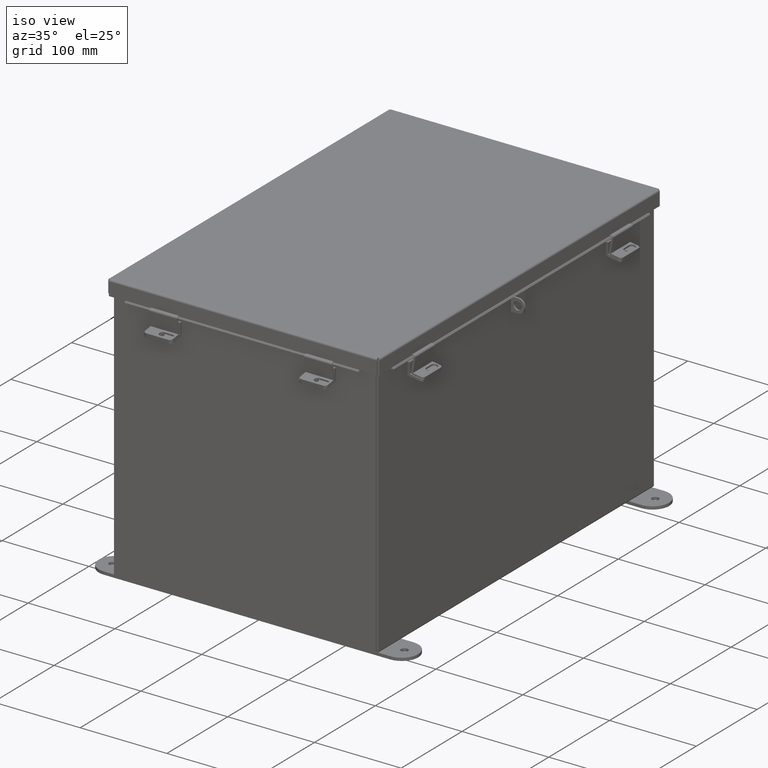
[diagram: clean part render]
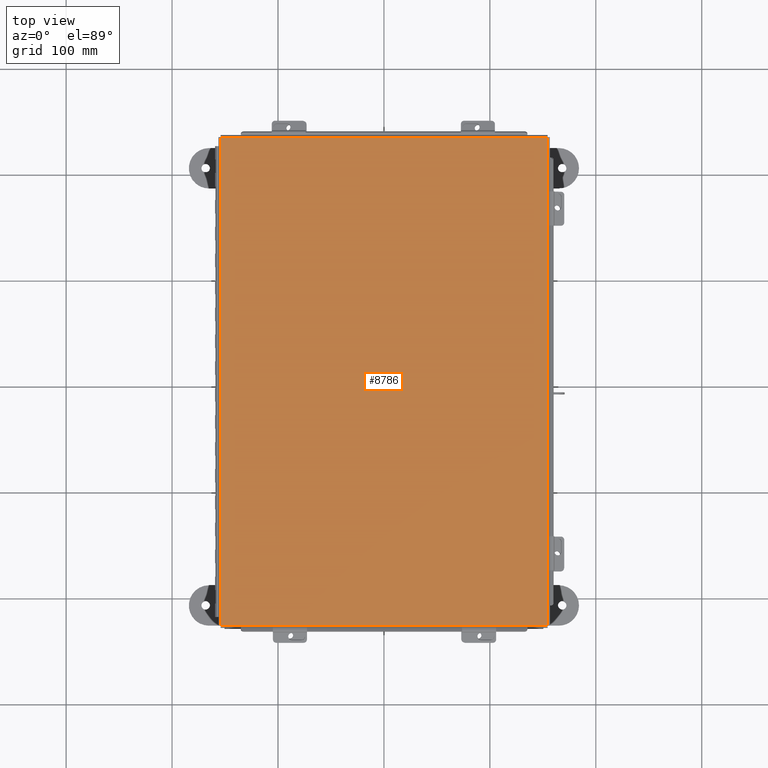
[diagram: tour spotlight — one face highlighted and labeled with its STEP entity id]
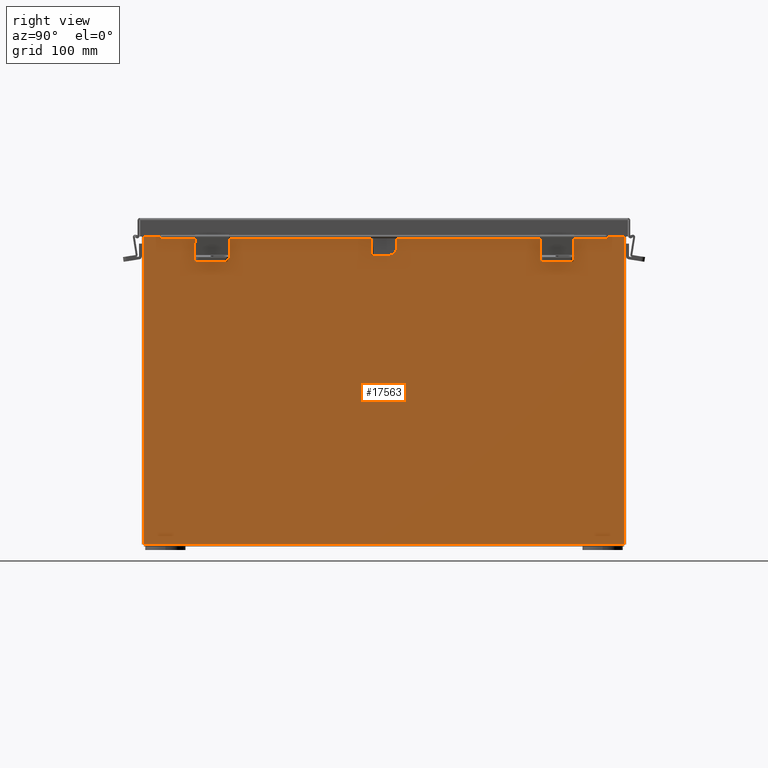
[diagram: tour spotlight — one face highlighted and labeled with its STEP entity id]
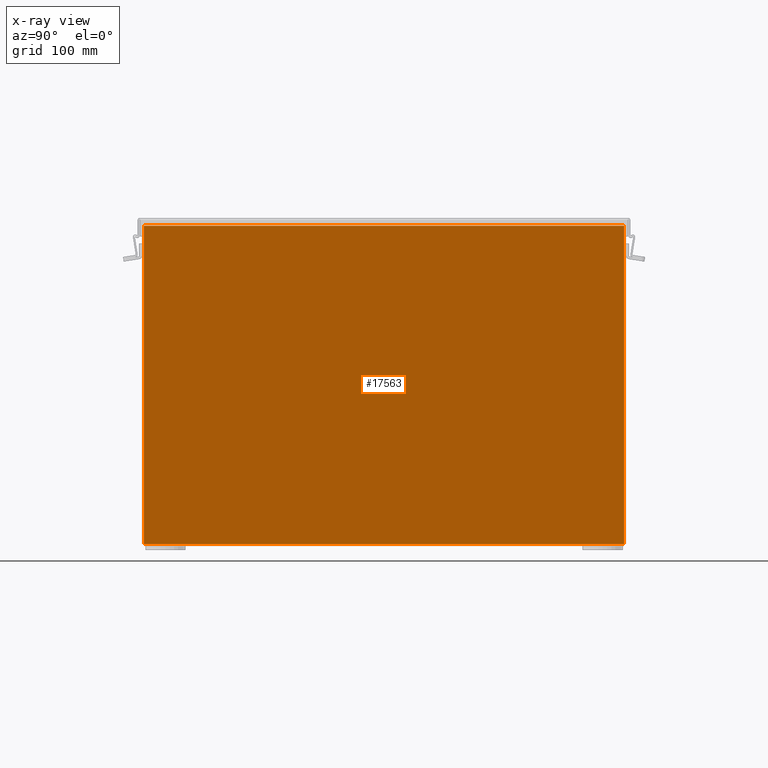
[diagram: x-ray of the same camera — body ghosted, this tour face saturated]
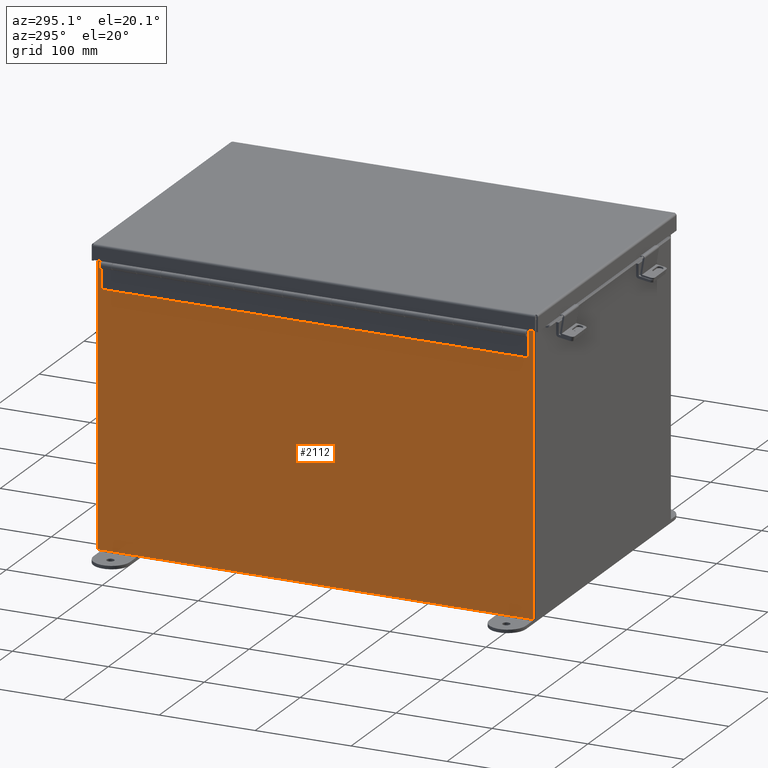
[diagram: tour spotlight — one face highlighted and labeled with its STEP entity id]
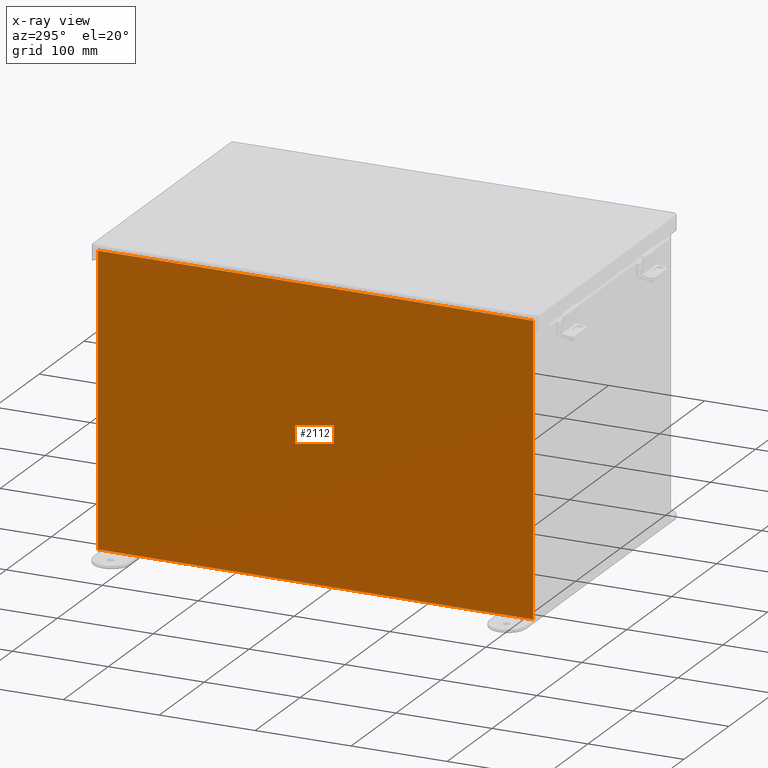
[diagram: x-ray of the same camera — body ghosted, this tour face saturated]
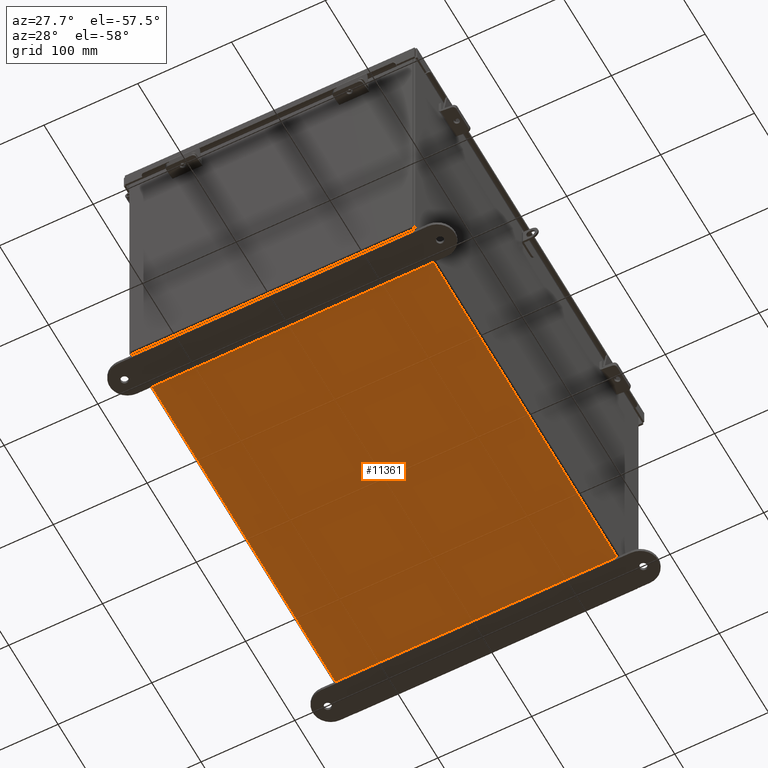
[diagram: tour spotlight — one face highlighted and labeled with its STEP entity id]
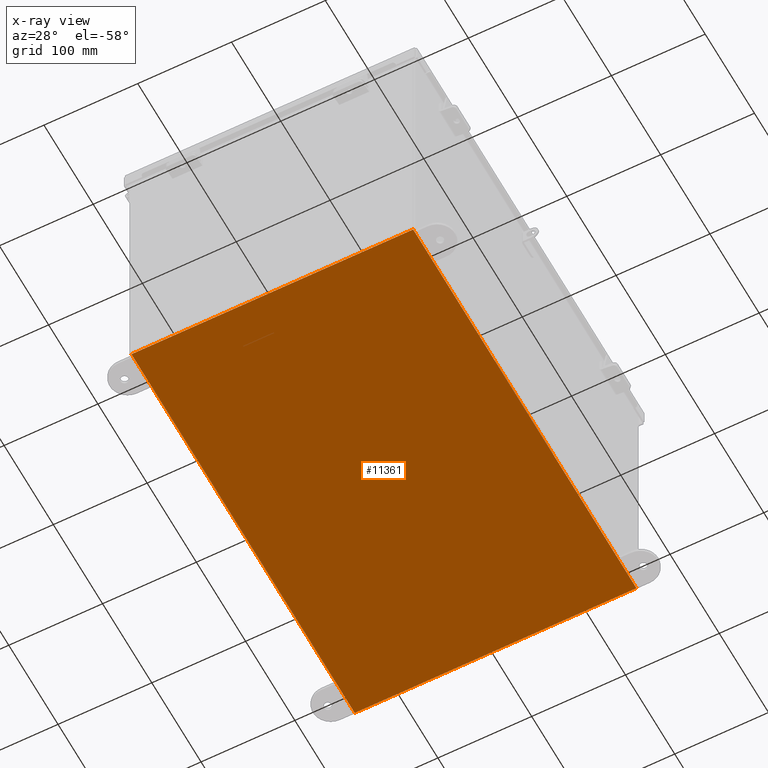
[diagram: x-ray of the same camera — body ghosted, this tour face saturated]
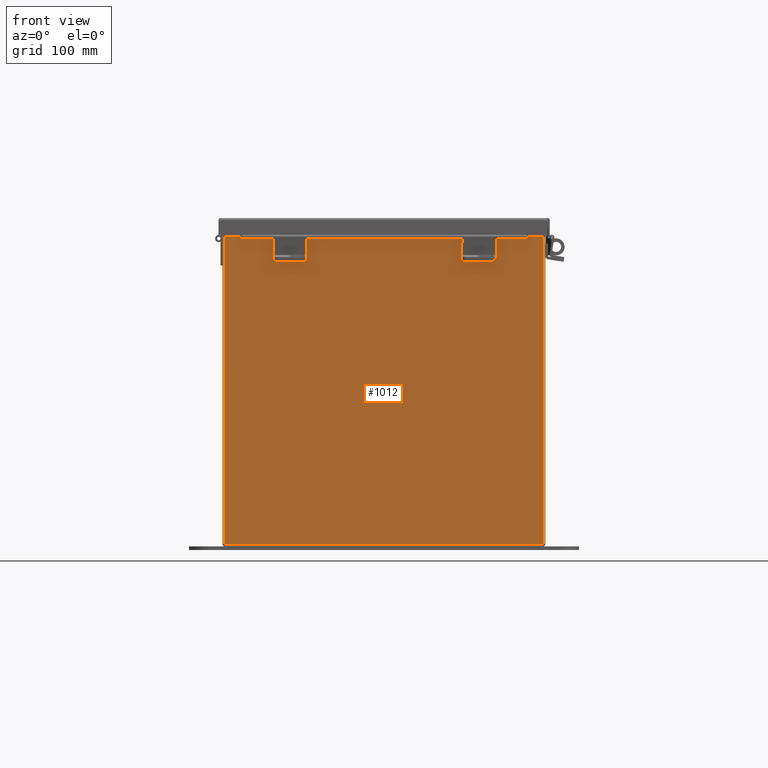
[diagram: tour spotlight — one face highlighted and labeled with its STEP entity id]
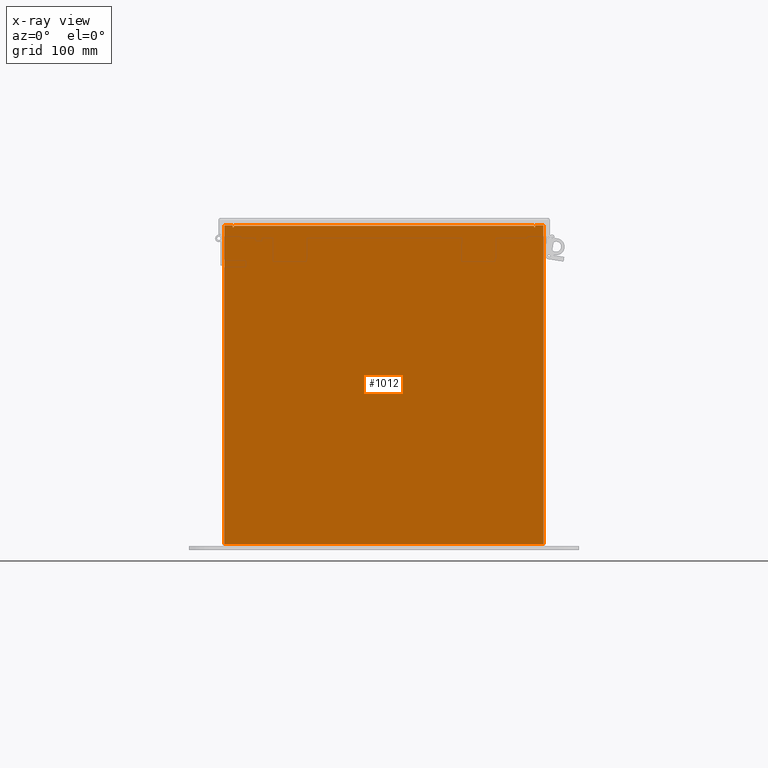
[diagram: x-ray of the same camera — body ghosted, this tour face saturated]
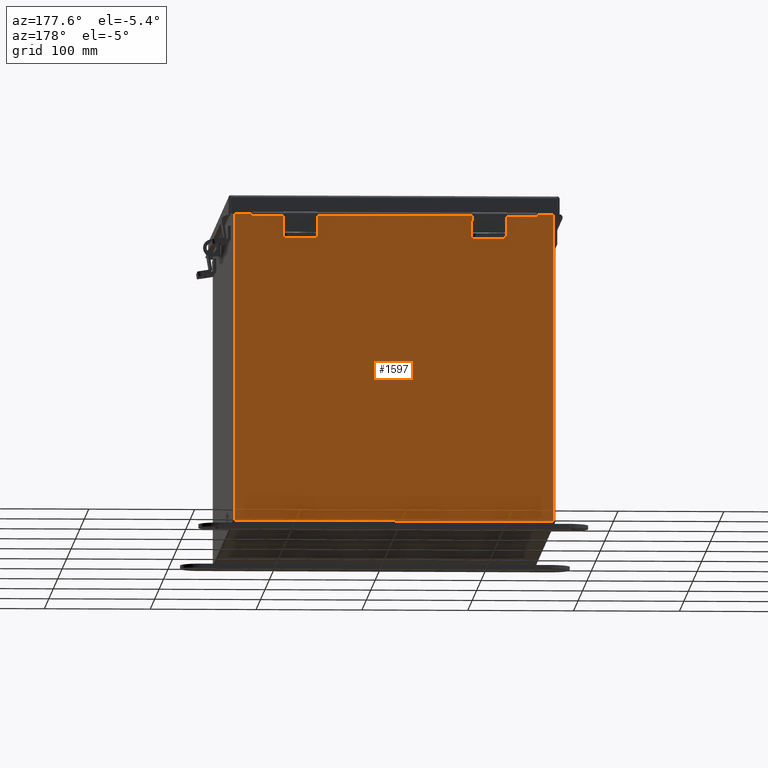
[diagram: tour spotlight — one face highlighted and labeled with its STEP entity id]
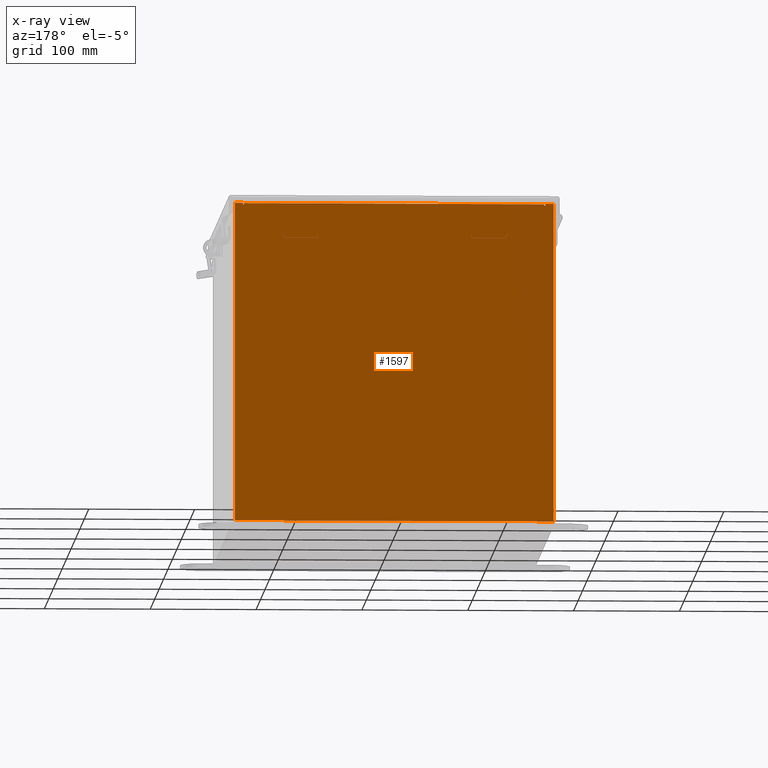
[diagram: x-ray of the same camera — body ghosted, this tour face saturated]
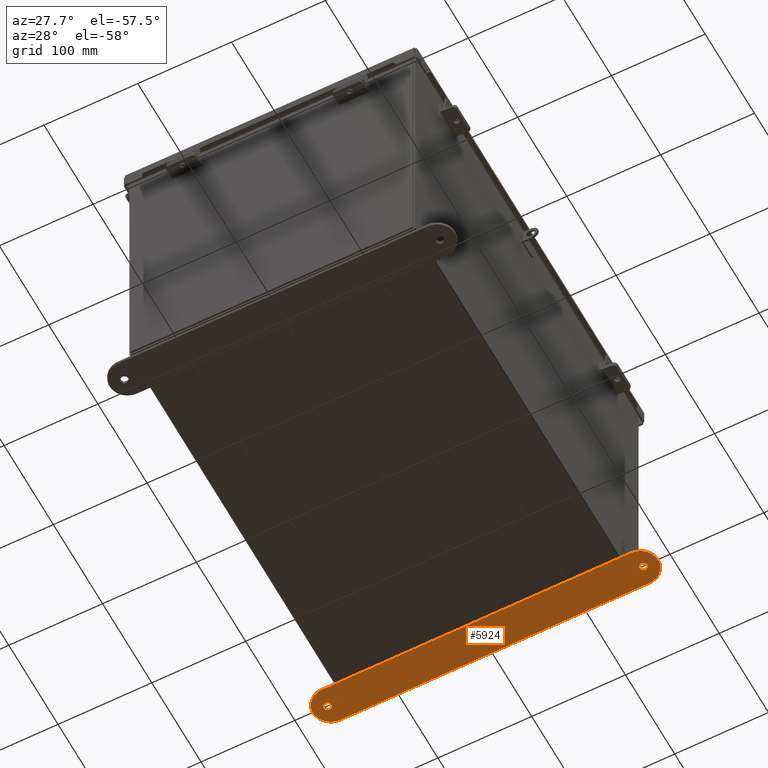
[diagram: tour spotlight — one face highlighted and labeled with its STEP entity id]
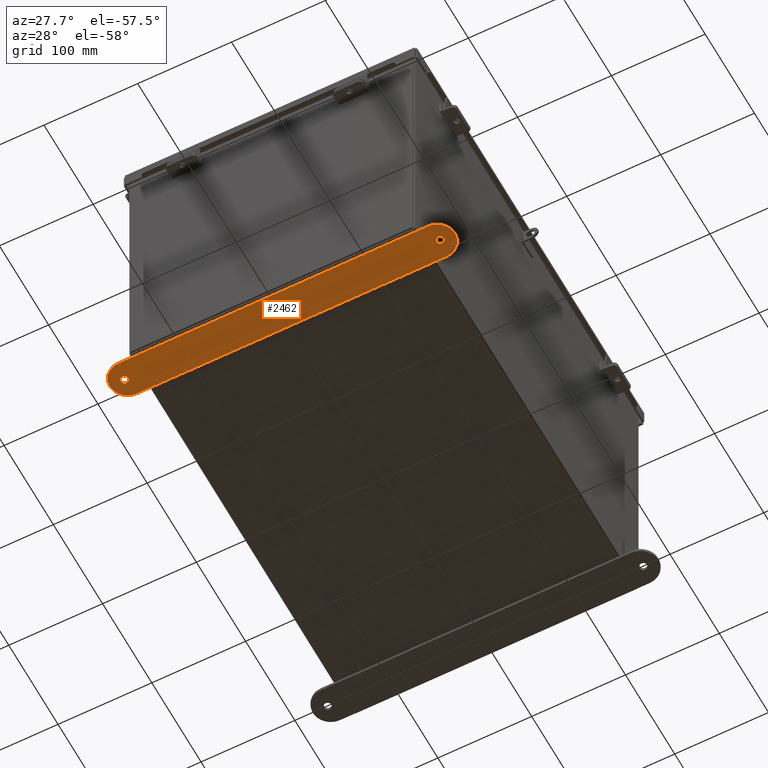
[diagram: tour spotlight — one face highlighted and labeled with its STEP entity id]
A machine part: a face-by-face anatomy tour. The part has 824 B-rep faces; the first image is the clean iso view, then the 8 largest visible faces are spotlighted one at a time (largest first), each with its STEP entity span.

Face 1 — top view, entity #8786. In plain terms, the highlighted planar face has unit normal (-0, -0, 1).
Definition (entity closure, byte-faithful):
#483 = AXIS2_PLACEMENT_3D ( 'NONE', #10445, #11934, #13941 ) ;
#1691 = ORIENTED_EDGE ( 'NONE', *, *, #13396, .T. ) ;
#1716 = CARTESIAN_POINT ( 'NONE',  ( 6.068550000000011700, -9.068550000000021400, -0.07470000000000015500 ) ) ;
#1832 = CARTESIAN_POINT ( 'NONE',  ( 6.074478932188148900, -9.068550000000021400, -0.07470000000000015500 ) ) ;
#2330 = CARTESIAN_POINT ( 'NONE',  ( -6.074478932188125000, 9.068549999999977000, -0.07470000000000015500 ) ) ;
#3361 = ORIENTED_EDGE ( 'NONE', *, *, #7178, .T. ) ;
#4625 = LINE ( 'NONE', #16797, #15910 ) ;
#5081 = DIRECTION ( 'NONE',  ( 1.000000000000000000, -4.576273056739371600E-029, -0.0000000000000000000 ) ) ;
#5656 = EDGE_CURVE ( 'NONE', #18698, #10270, #9487, .T. ) ;
#7178 = EDGE_CURVE ( 'NONE', #15689, #18698, #4625, .T. ) ;
#7565 = CARTESIAN_POINT ( 'NONE',  ( -6.068549999999987700, 9.068549999999977000, -0.07470000000000015500 ) ) ;
#7854 = FACE_OUTER_BOUND ( 'NONE', #15581, .T. ) ;
#8786 = ADVANCED_FACE ( 'NONE', ( #7854 ), #16714, .T. ) ;
#8849 = VERTEX_POINT ( 'NONE', #1716 ) ;
#9487 = LINE ( 'NONE', #2330, #16430 ) ;
#9729 = LINE ( 'NONE', #11471, #17139 ) ;
#10221 = CARTESIAN_POINT ( 'NONE',  ( -6.068549999999987700, -9.068550000000021400, -0.07470000000000234800 ) ) ;
#10270 = VERTEX_POINT ( 'NONE', #12696 ) ;
#10445 = CARTESIAN_POINT ( 'NONE',  ( 0.0000000000000000000, 0.0000000000000000000, -0.07470000000000015500 ) ) ;
#11128 = ORIENTED_EDGE ( 'NONE', *, *, #5656, .T. ) ;
#11471 = CARTESIAN_POINT ( 'NONE',  ( 6.068550000000011700, 9.074478932188112500, -0.07469999999999797600 ) ) ;
#11934 = DIRECTION ( 'NONE',  ( -1.522986851001634200E-058, -3.328006943901143600E-030, -1.000000000000000000 ) ) ;
#12545 = DIRECTION ( 'NONE',  ( 4.576273056739368800E-029, -1.000000000000000000, -3.328006943901143600E-030 ) ) ;
#12696 = CARTESIAN_POINT ( 'NONE',  ( 6.068550000000011700, 9.068549999999977000, -0.07469999999999797600 ) ) ;
#13396 = EDGE_CURVE ( 'NONE', #10270, #8849, #9729, .T. ) ;
#13878 = DIRECTION ( 'NONE',  ( -1.000000000000000000, 4.576273056739371600E-029, -0.0000000000000000000 ) ) ;
#13941 = DIRECTION ( 'NONE',  ( -1.000000000000000000, 4.576273056739371600E-029, 0.0000000000000000000 ) ) ;
#15415 = DIRECTION ( 'NONE',  ( -4.557863265301595500E-029, 1.000000000000000000, 8.208677865577979100E-017 ) ) ;
#15581 = EDGE_LOOP ( 'NONE', ( #11128, #1691, #16921, #3361 ) ) ;
#15637 = EDGE_CURVE ( 'NONE', #8849, #15689, #18920, .T. ) ;
#15689 = VERTEX_POINT ( 'NONE', #10221 ) ;
#15910 = VECTOR ( 'NONE', #15415, 39.37007874015748100 ) ;
#16430 = VECTOR ( 'NONE', #5081, 39.37007874015748100 ) ;
#16714 = PLANE ( 'NONE',  #483 ) ;
#16797 = CARTESIAN_POINT ( 'NONE',  ( -6.068549999999987700, -9.074478932188156900, -0.07470000000000234800 ) ) ;
#16921 = ORIENTED_EDGE ( 'NONE', *, *, #15637, .T. ) ;
#17139 = VECTOR ( 'NONE', #12545, 39.37007874015748100 ) ;
#17535 = VECTOR ( 'NONE', #13878, 39.37007874015748100 ) ;
#18698 = VERTEX_POINT ( 'NONE', #7565 ) ;
#18920 = LINE ( 'NONE', #1832, #17535 ) ;

Face 2 — right view, entity #17563. An x-ray twin of the same camera follows (body ghosted, this face saturated) — the face is partly hidden behind the body. In plain terms, the highlighted planar face has unit normal (-1, 0, 0).
Definition (entity closure, byte-faithful):
#80 = EDGE_CURVE ( 'NONE', #5178, #14358, #2666, .T. ) ;
#513 = CARTESIAN_POINT ( 'NONE',  ( 5.999999999999999100, 8.925299999999996500, 0.01299999999999984300 ) ) ;
#980 = DIRECTION ( 'NONE',  ( 3.503965158194252100E-015, 0.0000000000000000000, 1.000000000000000000 ) ) ;
#2161 = EDGE_LOOP ( 'NONE', ( #13623, #7438, #9231, #16878 ) ) ;
#2364 = CARTESIAN_POINT ( 'NONE',  ( 6.000000000000040900, -8.925300000000001800, 11.83760000000000000 ) ) ;
#2552 = PLANE ( 'NONE',  #4340 ) ;
#2666 = LINE ( 'NONE', #5661, #10418 ) ;
#3088 = EDGE_CURVE ( 'NONE', #15314, #14358, #14426, .T. ) ;
#3668 = CARTESIAN_POINT ( 'NONE',  ( 6.000000000000040900, 8.925299999999992900, 11.83760000000000000 ) ) ;
#4340 = AXIS2_PLACEMENT_3D ( 'NONE', #10924, #8305, #980 ) ;
#4638 = CARTESIAN_POINT ( 'NONE',  ( 5.999999999999999100, 8.925299999999996500, -2.046324887754137100E-014 ) ) ;
#5178 = VERTEX_POINT ( 'NONE', #513 ) ;
#5240 = CARTESIAN_POINT ( 'NONE',  ( 5.999999999999999100, -8.925300000000003600, 0.01299999999999984300 ) ) ;
#5661 = CARTESIAN_POINT ( 'NONE',  ( 5.999999999999999100, -8.925300000000003600, 0.01299999999999984300 ) ) ;
#7438 = ORIENTED_EDGE ( 'NONE', *, *, #3088, .T. ) ;
#7575 = CARTESIAN_POINT ( 'NONE',  ( 6.000000000000040900, 8.925299999999987600, 11.83760000000000000 ) ) ;
#8305 = DIRECTION ( 'NONE',  ( -1.000000000000000000, 0.0000000000000000000, 3.503965158194252100E-015 ) ) ;
#8707 = FACE_OUTER_BOUND ( 'NONE', #2161, .T. ) ;
#9231 = ORIENTED_EDGE ( 'NONE', *, *, #80, .F. ) ;
#9841 = VECTOR ( 'NONE', #14540, 39.37007874015748100 ) ;
#9979 = DIRECTION ( 'NONE',  ( -3.503965158194252900E-015, 0.0000000000000000000, -1.000000000000000000 ) ) ;
#10280 = LINE ( 'NONE', #3668, #9841 ) ;
#10392 = EDGE_CURVE ( 'NONE', #17044, #15314, #10280, .T. ) ;
#10418 = VECTOR ( 'NONE', #14413, 39.37007874015748100 ) ;
#10924 = CARTESIAN_POINT ( 'NONE',  ( 5.999999999999999100, 0.0000000000000000000, -2.128280327564064900E-014 ) ) ;
#11104 = VECTOR ( 'NONE', #14211, 39.37007874015748100 ) ;
#11830 = CARTESIAN_POINT ( 'NONE',  ( 5.999999999999999100, -8.925300000000003600, -2.128280327564064900E-014 ) ) ;
#13285 = EDGE_CURVE ( 'NONE', #5178, #17044, #15023, .T. ) ;
#13623 = ORIENTED_EDGE ( 'NONE', *, *, #10392, .T. ) ;
#13970 = VECTOR ( 'NONE', #9979, 39.37007874015748100 ) ;
#14211 = DIRECTION ( 'NONE',  ( 3.503965158194252900E-015, -9.220960942616452700E-017, 1.000000000000000000 ) ) ;
#14358 = VERTEX_POINT ( 'NONE', #5240 ) ;
#14413 = DIRECTION ( 'NONE',  ( -0.0000000000000000000, -1.000000000000000000, -0.0000000000000000000 ) ) ;
#14426 = LINE ( 'NONE', #11830, #13970 ) ;
#14540 = DIRECTION ( 'NONE',  ( -0.0000000000000000000, -1.000000000000000000, -0.0000000000000000000 ) ) ;
#15023 = LINE ( 'NONE', #4638, #11104 ) ;
#15314 = VERTEX_POINT ( 'NONE', #2364 ) ;
#16878 = ORIENTED_EDGE ( 'NONE', *, *, #13285, .T. ) ;
#17044 = VERTEX_POINT ( 'NONE', #7575 ) ;
#17563 = ADVANCED_FACE ( 'NONE', ( #8707 ), #2552, .F. ) ;

Face 3 — auxiliary view, entity #2112. An x-ray twin of the same camera follows (body ghosted, this face saturated) — the face is partly hidden behind the body. In plain terms, the highlighted planar face has unit normal (1, 0, 0).
Definition (entity closure, byte-faithful):
#249 = DIRECTION ( 'NONE',  ( 3.503965158194252100E-015, 0.0000000000000000000, -1.000000000000000000 ) ) ;
#367 = ORIENTED_EDGE ( 'NONE', *, *, #15862, .T. ) ;
#384 = VERTEX_POINT ( 'NONE', #17133 ) ;
#1035 = EDGE_CURVE ( 'NONE', #10010, #384, #17134, .T. ) ;
#1172 = CARTESIAN_POINT ( 'NONE',  ( -6.000000000000001800, 8.925299999999994700, 0.01299999999999984300 ) ) ;
#1176 = ORIENTED_EDGE ( 'NONE', *, *, #1035, .F. ) ;
#1214 = LINE ( 'NONE', #13229, #12468 ) ;
#2112 = ADVANCED_FACE ( 'NONE', ( #4136 ), #17832, .F. ) ;
#2302 = VERTEX_POINT ( 'NONE', #7661 ) ;
#2333 = CARTESIAN_POINT ( 'NONE',  ( -6.000000000000001800, 0.0000000000000000000, -2.128280327564064900E-014 ) ) ;
#3454 = ORIENTED_EDGE ( 'NONE', *, *, #6002, .T. ) ;
#3565 = CARTESIAN_POINT ( 'NONE',  ( -6.000000000000001800, -8.925300000000001800, 0.01300000000000093600 ) ) ;
#4006 = VECTOR ( 'NONE', #13234, 39.37007874015748100 ) ;
#4136 = FACE_OUTER_BOUND ( 'NONE', #18454, .T. ) ;
#4255 = DIRECTION ( 'NONE',  ( -3.503965158194252100E-015, 2.766288282784935300E-016, 1.000000000000000000 ) ) ;
#5204 = AXIS2_PLACEMENT_3D ( 'NONE', #2333, #8398, #15931 ) ;
#5591 = CARTESIAN_POINT ( 'NONE',  ( -6.000000000000043500, 8.925299999999994700, 11.83759999999999800 ) ) ;
#6002 = EDGE_CURVE ( 'NONE', #6951, #384, #11764, .T. ) ;
#6951 = VERTEX_POINT ( 'NONE', #5591 ) ;
#6985 = VECTOR ( 'NONE', #249, 39.37007874015748100 ) ;
#7661 = CARTESIAN_POINT ( 'NONE',  ( -6.000000000000043500, -8.925299999999996500, 11.83759999999999800 ) ) ;
#8398 = DIRECTION ( 'NONE',  ( 1.000000000000000000, 0.0000000000000000000, 3.503965158194251300E-015 ) ) ;
#9499 = CARTESIAN_POINT ( 'NONE',  ( -6.000000000000001800, 8.925299999999994700, -2.128280327564064900E-014 ) ) ;
#10010 = VERTEX_POINT ( 'NONE', #3565 ) ;
#11477 = DIRECTION ( 'NONE',  ( 0.0000000000000000000, 1.000000000000000000, 0.0000000000000000000 ) ) ;
#11764 = LINE ( 'NONE', #9499, #6985 ) ;
#12468 = VECTOR ( 'NONE', #11477, 39.37007874015748100 ) ;
#12796 = ORIENTED_EDGE ( 'NONE', *, *, #14722, .T. ) ;
#13229 = CARTESIAN_POINT ( 'NONE',  ( -6.000000000000043500, -8.925299999999998200, 11.83759999999999800 ) ) ;
#13234 = DIRECTION ( 'NONE',  ( 2.144981163049411000E-031, 1.000000000000000000, -6.121582453618958700E-017 ) ) ;
#14644 = CARTESIAN_POINT ( 'NONE',  ( -6.000000000000001800, -8.925300000000001800, -1.881560305636261100E-014 ) ) ;
#14722 = EDGE_CURVE ( 'NONE', #10010, #2302, #16670, .T. ) ;
#15703 = VECTOR ( 'NONE', #4255, 39.37007874015748100 ) ;
#15862 = EDGE_CURVE ( 'NONE', #2302, #6951, #1214, .T. ) ;
#15931 = DIRECTION ( 'NONE',  ( 3.503965158194251300E-015, 0.0000000000000000000, -1.000000000000000000 ) ) ;
#16670 = LINE ( 'NONE', #14644, #15703 ) ;
#17133 = CARTESIAN_POINT ( 'NONE',  ( -6.000000000000001800, 8.925299999999994700, 0.01299999999999965400 ) ) ;
#17134 = LINE ( 'NONE', #1172, #4006 ) ;
#17832 = PLANE ( 'NONE',  #5204 ) ;
#18454 = EDGE_LOOP ( 'NONE', ( #367, #3454, #1176, #12796 ) ) ;

Face 4 — auxiliary view, entity #11361. An x-ray twin of the same camera follows (body ghosted, this face saturated) — the face is partly hidden behind the body. In plain terms, the highlighted planar face has unit normal (0, 0, -1).
Definition (entity closure, byte-faithful):
#277 = CARTESIAN_POINT ( 'NONE',  ( 5.912299999999999200, 8.925299999999998200, -0.07469999999999994700 ) ) ;
#661 = CARTESIAN_POINT ( 'NONE',  ( -6.000000000000001800, -8.925300000000003600, -0.07470000000000000300 ) ) ;
#1052 = DIRECTION ( 'NONE',  ( 1.000000000000000000, -9.106159978880878600E-017, 0.0000000000000000000 ) ) ;
#1493 = VECTOR ( 'NONE', #1052, 39.37007874015748100 ) ;
#1616 = ORIENTED_EDGE ( 'NONE', *, *, #13641, .F. ) ;
#2116 = LINE ( 'NONE', #277, #16365 ) ;
#2354 = CARTESIAN_POINT ( 'NONE',  ( -5.912300000000001000, 8.925299999999996500, -0.07470000000000000300 ) ) ;
#3097 = VECTOR ( 'NONE', #11389, 39.37007874015748100 ) ;
#3178 = CARTESIAN_POINT ( 'NONE',  ( -6.000000000000001800, 8.925299999999996500, -0.07470000000000000300 ) ) ;
#4397 = ORIENTED_EDGE ( 'NONE', *, *, #7726, .T. ) ;
#5433 = LINE ( 'NONE', #661, #1493 ) ;
#6523 = VERTEX_POINT ( 'NONE', #15423 ) ;
#7066 = AXIS2_PLACEMENT_3D ( 'NONE', #10737, #16044, #15203 ) ;
#7726 = EDGE_CURVE ( 'NONE', #6523, #15629, #2116, .T. ) ;
#9330 = ORIENTED_EDGE ( 'NONE', *, *, #14835, .T. ) ;
#9443 = DIRECTION ( 'NONE',  ( -0.0000000000000000000, 1.000000000000000000, -8.208677865577646300E-017 ) ) ;
#9953 = ORIENTED_EDGE ( 'NONE', *, *, #12917, .F. ) ;
#10191 = CARTESIAN_POINT ( 'NONE',  ( -5.912300000000001000, -8.925300000000001800, -0.07469999999999867000 ) ) ;
#10369 = LINE ( 'NONE', #12414, #13862 ) ;
#10737 = CARTESIAN_POINT ( 'NONE',  ( 0.0000000000000000000, 0.0000000000000000000, -0.07470000000000000300 ) ) ;
#11361 = ADVANCED_FACE ( 'NONE', ( #18590 ), #15510, .T. ) ;
#11389 = DIRECTION ( 'NONE',  ( -1.000000000000000000, -0.0000000000000000000, -0.0000000000000000000 ) ) ;
#11996 = VERTEX_POINT ( 'NONE', #10191 ) ;
#12414 = CARTESIAN_POINT ( 'NONE',  ( -5.912300000000001000, -8.925300000000001800, -0.07469999999999867000 ) ) ;
#12917 = EDGE_CURVE ( 'NONE', #11996, #15629, #5433, .T. ) ;
#13641 = EDGE_CURVE ( 'NONE', #6523, #18816, #18279, .T. ) ;
#13862 = VECTOR ( 'NONE', #9443, 39.37007874015748100 ) ;
#13939 = EDGE_LOOP ( 'NONE', ( #1616, #4397, #9953, #9330 ) ) ;
#14835 = EDGE_CURVE ( 'NONE', #11996, #18816, #10369, .T. ) ;
#15029 = DIRECTION ( 'NONE',  ( -0.0000000000000000000, -1.000000000000000000, -0.0000000000000000000 ) ) ;
#15203 = DIRECTION ( 'NONE',  ( -1.000000000000000000, 0.0000000000000000000, -0.0000000000000000000 ) ) ;
#15423 = CARTESIAN_POINT ( 'NONE',  ( 5.912299999999999200, 8.925299999999996500, -0.07469999999999994700 ) ) ;
#15510 = PLANE ( 'NONE',  #7066 ) ;
#15629 = VERTEX_POINT ( 'NONE', #16830 ) ;
#16044 = DIRECTION ( 'NONE',  ( 0.0000000000000000000, 0.0000000000000000000, -1.000000000000000000 ) ) ;
#16365 = VECTOR ( 'NONE', #15029, 39.37007874015748100 ) ;
#16830 = CARTESIAN_POINT ( 'NONE',  ( 5.912299999999999200, -8.925300000000003600, -0.07470000000000000300 ) ) ;
#18279 = LINE ( 'NONE', #3178, #3097 ) ;
#18590 = FACE_OUTER_BOUND ( 'NONE', #13939, .T. ) ;
#18816 = VERTEX_POINT ( 'NONE', #2354 ) ;

Face 5 — front view, entity #1012. An x-ray twin of the same camera follows (body ghosted, this face saturated) — the face is partly hidden behind the body. In plain terms, the highlighted planar face has unit normal (-0, 1, -0).
Definition (entity closure, byte-faithful):
#379 = LINE ( 'NONE', #14933, #15110 ) ;
#399 = LINE ( 'NONE', #3543, #3891 ) ;
#609 = DIRECTION ( 'NONE',  ( 0.0000000000000000000, 0.0000000000000000000, 1.000000000000000000 ) ) ;
#806 = ORIENTED_EDGE ( 'NONE', *, *, #8563, .T. ) ;
#834 = DIRECTION ( 'NONE',  ( -1.230560758958866800E-030, -1.000000000000000000, -0.0000000000000000000 ) ) ;
#967 = VECTOR ( 'NONE', #7082, 39.37007874015748100 ) ;
#984 = PLANE ( 'NONE',  #11533 ) ;
#1012 = ADVANCED_FACE ( 'NONE', ( #15708 ), #984, .F. ) ;
#1089 = EDGE_CURVE ( 'NONE', #7172, #6497, #18274, .T. ) ;
#1217 = LINE ( 'NONE', #11662, #15946 ) ;
#1512 = VERTEX_POINT ( 'NONE', #15062 ) ;
#1738 = DIRECTION ( 'NONE',  ( 1.230560758958866800E-030, 1.000000000000000000, -0.0000000000000000000 ) ) ;
#1897 = DIRECTION ( 'NONE',  ( 1.000000000000000000, 1.230560758958866800E-030, 0.0000000000000000000 ) ) ;
#2138 = ORIENTED_EDGE ( 'NONE', *, *, #18626, .T. ) ;
#2710 = VECTOR ( 'NONE', #15639, 39.37007874015748100 ) ;
#2717 = CARTESIAN_POINT ( 'NONE',  ( -5.600975000000020500, -2.185478394931410600E-014, 5.874949999999998300 ) ) ;
#2948 = EDGE_CURVE ( 'NONE', #9960, #13920, #16783, .T. ) ;
#3160 = CARTESIAN_POINT ( 'NONE',  ( -5.619649999999999100, -2.185478394931410600E-014, 5.925299999999999100 ) ) ;
#3255 = CARTESIAN_POINT ( 'NONE',  ( -5.925300000000000000, -2.185478394931410600E-014, -5.925300000000021300 ) ) ;
#3543 = CARTESIAN_POINT ( 'NONE',  ( -5.925300000000000000, -2.185478394931410600E-014, 5.925300000000001800 ) ) ;
#3641 = CARTESIAN_POINT ( 'NONE',  ( -5.619650000000019600, -2.185478394931410600E-014, 5.874949999999998300 ) ) ;
#3891 = VECTOR ( 'NONE', #609, 39.37007874015748100 ) ;
#4483 = DIRECTION ( 'NONE',  ( 1.000000000000000000, 1.230560758958866800E-030, 0.0000000000000000000 ) ) ;
#4896 = LINE ( 'NONE', #9157, #967 ) ;
#5261 = EDGE_CURVE ( 'NONE', #13281, #13810, #18985, .T. ) ;
#5424 = ORIENTED_EDGE ( 'NONE', *, *, #6162, .F. ) ;
#6144 = LINE ( 'NONE', #14042, #2710 ) ;
#6162 = EDGE_CURVE ( 'NONE', #14767, #7172, #1217, .T. ) ;
#6331 = CARTESIAN_POINT ( 'NONE',  ( -5.582299999999999200, 0.0000000000000000000, -2.185478394931410600E-014 ) ) ;
#6401 = ORIENTED_EDGE ( 'NONE', *, *, #2948, .T. ) ;
#6445 = EDGE_CURVE ( 'NONE', #1512, #9259, #4896, .T. ) ;
#6446 = LINE ( 'NONE', #15612, #13317 ) ;
#6497 = VERTEX_POINT ( 'NONE', #11422 ) ;
#6520 = CARTESIAN_POINT ( 'NONE',  ( 5.619649999999978700, 0.0000000000000000000, 5.874949999999998300 ) ) ;
#6549 = DIRECTION ( 'NONE',  ( 0.0000000000000000000, 0.0000000000000000000, -1.000000000000000000 ) ) ;
#6575 = CARTESIAN_POINT ( 'NONE',  ( -5.582299999999999200, -1.966930555438269700E-014, 5.912299999999996600 ) ) ;
#7082 = DIRECTION ( 'NONE',  ( 9.220960942616447800E-017, 0.0000000000000000000, -1.000000000000000000 ) ) ;
#7172 = VERTEX_POINT ( 'NONE', #6520 ) ;
#7234 = ORIENTED_EDGE ( 'NONE', *, *, #11642, .F. ) ;
#7484 = VECTOR ( 'NONE', #6549, 39.37007874015748100 ) ;
#8372 = ORIENTED_EDGE ( 'NONE', *, *, #19083, .T. ) ;
#8424 = ORIENTED_EDGE ( 'NONE', *, *, #5261, .F. ) ;
#8502 = CARTESIAN_POINT ( 'NONE',  ( 5.582300000000000000, 0.0000000000000000000, 5.912299999999996600 ) ) ;
#8563 = EDGE_CURVE ( 'NONE', #9259, #11551, #13575, .T. ) ;
#8709 = DIRECTION ( 'NONE',  ( 0.0000000000000000000, 0.0000000000000000000, -1.000000000000000000 ) ) ;
#8770 = VERTEX_POINT ( 'NONE', #13207 ) ;
#8866 = CARTESIAN_POINT ( 'NONE',  ( 5.925300000000001800, 0.0000000000000000000, -5.925300000000000000 ) ) ;
#9157 = CARTESIAN_POINT ( 'NONE',  ( 5.925300000000000000, 0.0000000000000000000, 5.925300000000001800 ) ) ;
#9259 = VERTEX_POINT ( 'NONE', #8866 ) ;
#9644 = DIRECTION ( 'NONE',  ( 0.0000000000000000000, 0.0000000000000000000, -1.000000000000000000 ) ) ;
#9960 = VERTEX_POINT ( 'NONE', #6575 ) ;
#10347 = ORIENTED_EDGE ( 'NONE', *, *, #12631, .F. ) ;
#10713 = DIRECTION ( 'NONE',  ( 1.000000000000000000, 1.230560758958866800E-030, -0.0000000000000000000 ) ) ;
#10933 = ORIENTED_EDGE ( 'NONE', *, *, #1089, .F. ) ;
#11000 = DIRECTION ( 'NONE',  ( 1.230560758958866800E-030, 1.000000000000000000, -0.0000000000000000000 ) ) ;
#11355 = ORIENTED_EDGE ( 'NONE', *, *, #6445, .T. ) ;
#11422 = CARTESIAN_POINT ( 'NONE',  ( 5.582299999999976900, 0.0000000000000000000, 5.874949999999998300 ) ) ;
#11533 = AXIS2_PLACEMENT_3D ( 'NONE', #17891, #834, #8709 ) ;
#11551 = VERTEX_POINT ( 'NONE', #13512 ) ;
#11642 = EDGE_CURVE ( 'NONE', #6497, #13920, #6144, .T. ) ;
#11662 = CARTESIAN_POINT ( 'NONE',  ( 5.619650000000000000, 0.0000000000000000000, 0.0000000000000000000 ) ) ;
#12269 = CARTESIAN_POINT ( 'NONE',  ( -5.925300000000000000, -2.185478394931410600E-014, 5.925300000000001800 ) ) ;
#12325 = ORIENTED_EDGE ( 'NONE', *, *, #13871, .F. ) ;
#12358 = VECTOR ( 'NONE', #10713, 39.37007874015748100 ) ;
#12623 = EDGE_LOOP ( 'NONE', ( #8424, #12325, #10347, #6401, #7234, #10933, #5424, #8372, #11355, #806, #2138, #15336 ) ) ;
#12631 = EDGE_CURVE ( 'NONE', #9960, #8770, #17849, .T. ) ;
#12737 = DIRECTION ( 'NONE',  ( -1.000000000000000000, -1.231212789688098600E-030, 9.220960942616447800E-017 ) ) ;
#13207 = CARTESIAN_POINT ( 'NONE',  ( -5.582300000000021400, -2.185478394931410600E-014, 5.874949999999998300 ) ) ;
#13281 = VERTEX_POINT ( 'NONE', #3641 ) ;
#13317 = VECTOR ( 'NONE', #4483, 39.37007874015748100 ) ;
#13443 = CARTESIAN_POINT ( 'NONE',  ( 5.600974999999977800, 0.0000000000000000000, 5.874949999999998300 ) ) ;
#13512 = CARTESIAN_POINT ( 'NONE',  ( -5.925300000000000000, -2.185478394931410600E-014, -5.925300000000021300 ) ) ;
#13575 = LINE ( 'NONE', #3255, #14036 ) ;
#13668 = DIRECTION ( 'NONE',  ( 0.0000000000000000000, 0.0000000000000000000, 1.000000000000000000 ) ) ;
#13810 = VERTEX_POINT ( 'NONE', #3160 ) ;
#13871 = EDGE_CURVE ( 'NONE', #8770, #13281, #18956, .T. ) ;
#13920 = VERTEX_POINT ( 'NONE', #8502 ) ;
#14036 = VECTOR ( 'NONE', #12737, 39.37007874015748100 ) ;
#14042 = CARTESIAN_POINT ( 'NONE',  ( 5.582300000000000000, 0.0000000000000000000, 0.0000000000000000000 ) ) ;
#14767 = VERTEX_POINT ( 'NONE', #17452 ) ;
#14933 = CARTESIAN_POINT ( 'NONE',  ( -5.925300000000000000, -2.185478394931410600E-014, 5.925300000000001800 ) ) ;
#14942 = AXIS2_PLACEMENT_3D ( 'NONE', #2717, #11000, #15880 ) ;
#15062 = CARTESIAN_POINT ( 'NONE',  ( 5.925300000000000000, 0.0000000000000000000, 5.925300000000001800 ) ) ;
#15110 = VECTOR ( 'NONE', #1897, 39.37007874015748100 ) ;
#15336 = ORIENTED_EDGE ( 'NONE', *, *, #18291, .T. ) ;
#15612 = CARTESIAN_POINT ( 'NONE',  ( -5.925300000000000000, -2.185478394931410600E-014, 5.925300000000001800 ) ) ;
#15639 = DIRECTION ( 'NONE',  ( 0.0000000000000000000, 0.0000000000000000000, 1.000000000000000000 ) ) ;
#15708 = FACE_OUTER_BOUND ( 'NONE', #12623, .T. ) ;
#15725 = CARTESIAN_POINT ( 'NONE',  ( -5.582300000000000000, -1.966930555438269700E-014, 5.912299999999996600 ) ) ;
#15880 = DIRECTION ( 'NONE',  ( 0.0000000000000000000, 0.0000000000000000000, -1.000000000000000000 ) ) ;
#15946 = VECTOR ( 'NONE', #17694, 39.37007874015748100 ) ;
#16218 = CARTESIAN_POINT ( 'NONE',  ( -5.619649999999999100, 0.0000000000000000000, -2.185478394931410600E-014 ) ) ;
#16531 = AXIS2_PLACEMENT_3D ( 'NONE', #13443, #1738, #9644 ) ;
#16632 = VERTEX_POINT ( 'NONE', #12269 ) ;
#16783 = LINE ( 'NONE', #15725, #12358 ) ;
#17452 = CARTESIAN_POINT ( 'NONE',  ( 5.619649999999999100, 0.0000000000000000000, 5.925299999999999100 ) ) ;
#17694 = DIRECTION ( 'NONE',  ( 0.0000000000000000000, 0.0000000000000000000, -1.000000000000000000 ) ) ;
#17849 = LINE ( 'NONE', #6331, #7484 ) ;
#17891 = CARTESIAN_POINT ( 'NONE',  ( 0.0000000000000000000, 0.0000000000000000000, 0.0000000000000000000 ) ) ;
#18274 = CIRCLE ( 'NONE', #16531, 0.01867499999999949400 ) ;
#18291 = EDGE_CURVE ( 'NONE', #16632, #13810, #6446, .T. ) ;
#18520 = VECTOR ( 'NONE', #13668, 39.37007874015748100 ) ;
#18626 = EDGE_CURVE ( 'NONE', #11551, #16632, #399, .T. ) ;
#18956 = CIRCLE ( 'NONE', #14942, 0.01867499999999949400 ) ;
#18985 = LINE ( 'NONE', #16218, #18520 ) ;
#19083 = EDGE_CURVE ( 'NONE', #14767, #1512, #379, .T. ) ;

Face 6 — auxiliary view, entity #1597. An x-ray twin of the same camera follows (body ghosted, this face saturated) — the face is partly hidden behind the body. In plain terms, the highlighted planar face has unit normal (0, -1, 0).
Definition (entity closure, byte-faithful):
#42 = VERTEX_POINT ( 'NONE', #787 ) ;
#75 = EDGE_CURVE ( 'NONE', #16895, #12989, #17836, .T. ) ;
#787 = CARTESIAN_POINT ( 'NONE',  ( -5.619649999999999100, 0.0000000000000000000, 5.925300000000001800 ) ) ;
#790 = CARTESIAN_POINT ( 'NONE',  ( 0.0000000000000000000, 0.0000000000000000000, 0.0000000000000000000 ) ) ;
#939 = EDGE_CURVE ( 'NONE', #11513, #4301, #1461, .T. ) ;
#1102 = VECTOR ( 'NONE', #11948, 39.37007874015748100 ) ;
#1122 = CARTESIAN_POINT ( 'NONE',  ( -5.619649999999999100, 0.0000000000000000000, 0.0000000000000000000 ) ) ;
#1343 = VERTEX_POINT ( 'NONE', #16107 ) ;
#1426 = CARTESIAN_POINT ( 'NONE',  ( 5.582300000000000000, 0.0000000000000000000, 0.0000000000000000000 ) ) ;
#1461 = LINE ( 'NONE', #1426, #8787 ) ;
#1597 = ADVANCED_FACE ( 'NONE', ( #18255 ), #3718, .F. ) ;
#1613 = AXIS2_PLACEMENT_3D ( 'NONE', #790, #7507, #4326 ) ;
#2192 = ORIENTED_EDGE ( 'NONE', *, *, #10673, .T. ) ;
#2276 = VERTEX_POINT ( 'NONE', #6586 ) ;
#2561 = EDGE_CURVE ( 'NONE', #16895, #13584, #8468, .T. ) ;
#2579 = CARTESIAN_POINT ( 'NONE',  ( 5.925300000000000000, 0.0000000000000000000, 5.925299999999999100 ) ) ;
#2605 = ORIENTED_EDGE ( 'NONE', *, *, #9683, .F. ) ;
#2775 = CIRCLE ( 'NONE', #17521, 0.01867499999999949400 ) ;
#3010 = CARTESIAN_POINT ( 'NONE',  ( 5.582300000000000000, 0.0000000000000000000, 5.912300000000001000 ) ) ;
#3237 = CARTESIAN_POINT ( 'NONE',  ( 5.619649999999999100, 0.0000000000000000000, 5.925299999999999100 ) ) ;
#3441 = EDGE_CURVE ( 'NONE', #12989, #15588, #14641, .T. ) ;
#3630 = ORIENTED_EDGE ( 'NONE', *, *, #6081, .F. ) ;
#3718 = PLANE ( 'NONE',  #1613 ) ;
#3832 = CARTESIAN_POINT ( 'NONE',  ( 5.925300000000000000, 0.0000000000000000000, -5.925300000000001800 ) ) ;
#4301 = VERTEX_POINT ( 'NONE', #3010 ) ;
#4326 = DIRECTION ( 'NONE',  ( 0.0000000000000000000, -0.0000000000000000000, -1.000000000000000000 ) ) ;
#4502 = ORIENTED_EDGE ( 'NONE', *, *, #3441, .T. ) ;
#4917 = VECTOR ( 'NONE', #16569, 39.37007874015748100 ) ;
#5170 = ORIENTED_EDGE ( 'NONE', *, *, #5995, .T. ) ;
#5375 = DIRECTION ( 'NONE',  ( -0.0000000000000000000, 1.000000000000000000, -0.0000000000000000000 ) ) ;
#5625 = LINE ( 'NONE', #5687, #9015 ) ;
#5687 = CARTESIAN_POINT ( 'NONE',  ( -5.582299999999999200, 0.0000000000000000000, 0.0000000000000000000 ) ) ;
#5892 = EDGE_CURVE ( 'NONE', #15588, #11381, #12722, .T. ) ;
#5957 = CARTESIAN_POINT ( 'NONE',  ( -5.925300000000000000, 0.0000000000000000000, -5.925300000000001800 ) ) ;
#5995 = EDGE_CURVE ( 'NONE', #7336, #42, #11319, .T. ) ;
#6081 = EDGE_CURVE ( 'NONE', #1343, #2276, #18270, .T. ) ;
#6177 = VECTOR ( 'NONE', #6263, 39.37007874015748100 ) ;
#6263 = DIRECTION ( 'NONE',  ( -0.0000000000000000000, -0.0000000000000000000, 1.000000000000000000 ) ) ;
#6281 = VERTEX_POINT ( 'NONE', #17312 ) ;
#6376 = ORIENTED_EDGE ( 'NONE', *, *, #939, .F. ) ;
#6586 = CARTESIAN_POINT ( 'NONE',  ( -5.619649999999998300, 0.0000000000000000000, 5.874950000000000100 ) ) ;
#7062 = VECTOR ( 'NONE', #13518, 39.37007874015748100 ) ;
#7292 = CARTESIAN_POINT ( 'NONE',  ( -5.925300000000000000, 0.0000000000000000000, 5.925300000000001800 ) ) ;
#7336 = VERTEX_POINT ( 'NONE', #17473 ) ;
#7507 = DIRECTION ( 'NONE',  ( 0.0000000000000000000, -1.000000000000000000, 0.0000000000000000000 ) ) ;
#7735 = DIRECTION ( 'NONE',  ( 0.0000000000000000000, 0.0000000000000000000, -1.000000000000000000 ) ) ;
#7750 = DIRECTION ( 'NONE',  ( 1.000000000000000000, 0.0000000000000000000, -1.844192188523290300E-016 ) ) ;
#7765 = CARTESIAN_POINT ( 'NONE',  ( 5.619650000000000000, 0.0000000000000000000, 0.0000000000000000000 ) ) ;
#8294 = CARTESIAN_POINT ( 'NONE',  ( 5.582299999999999200, 0.0000000000000000000, 5.874950000000000100 ) ) ;
#8468 = LINE ( 'NONE', #7765, #11440 ) ;
#8787 = VECTOR ( 'NONE', #12817, 39.37007874015748100 ) ;
#9015 = VECTOR ( 'NONE', #13115, 39.37007874015748100 ) ;
#9428 = AXIS2_PLACEMENT_3D ( 'NONE', #16507, #5375, #12739 ) ;
#9683 = EDGE_CURVE ( 'NONE', #13584, #11513, #2775, .T. ) ;
#10281 = DIRECTION ( 'NONE',  ( 0.0000000000000000000, 0.0000000000000000000, -1.000000000000000000 ) ) ;
#10311 = ORIENTED_EDGE ( 'NONE', *, *, #18777, .F. ) ;
#10665 = CARTESIAN_POINT ( 'NONE',  ( -5.925300000000000000, 0.0000000000000000000, 5.925300000000001800 ) ) ;
#10673 = EDGE_CURVE ( 'NONE', #11381, #7336, #17926, .T. ) ;
#11319 = LINE ( 'NONE', #10665, #18723 ) ;
#11381 = VERTEX_POINT ( 'NONE', #5957 ) ;
#11440 = VECTOR ( 'NONE', #10281, 39.37007874015748100 ) ;
#11513 = VERTEX_POINT ( 'NONE', #8294 ) ;
#11612 = EDGE_CURVE ( 'NONE', #6281, #4301, #18356, .T. ) ;
#11948 = DIRECTION ( 'NONE',  ( 0.0000000000000000000, 0.0000000000000000000, 1.000000000000000000 ) ) ;
#12280 = CARTESIAN_POINT ( 'NONE',  ( 5.600975000000000000, 0.0000000000000000000, 5.874950000000000100 ) ) ;
#12446 = DIRECTION ( 'NONE',  ( 1.000000000000000000, 0.0000000000000000000, -1.844192188523290300E-016 ) ) ;
#12722 = LINE ( 'NONE', #12991, #4917 ) ;
#12739 = DIRECTION ( 'NONE',  ( 0.0000000000000000000, 0.0000000000000000000, -1.000000000000000000 ) ) ;
#12817 = DIRECTION ( 'NONE',  ( 0.0000000000000000000, 0.0000000000000000000, 1.000000000000000000 ) ) ;
#12989 = VERTEX_POINT ( 'NONE', #15483 ) ;
#12991 = CARTESIAN_POINT ( 'NONE',  ( -5.925300000000000000, 0.0000000000000000000, -5.925300000000001800 ) ) ;
#13100 = ORIENTED_EDGE ( 'NONE', *, *, #2561, .F. ) ;
#13115 = DIRECTION ( 'NONE',  ( 0.0000000000000000000, 0.0000000000000000000, -1.000000000000000000 ) ) ;
#13471 = CARTESIAN_POINT ( 'NONE',  ( -5.582300000000000000, 1.092739197465705300E-015, 5.912300000000005400 ) ) ;
#13518 = DIRECTION ( 'NONE',  ( 1.000000000000000000, 0.0000000000000000000, 0.0000000000000000000 ) ) ;
#13584 = VERTEX_POINT ( 'NONE', #15037 ) ;
#13749 = DIRECTION ( 'NONE',  ( 0.0000000000000000000, 0.0000000000000000000, -1.000000000000000000 ) ) ;
#13906 = VECTOR ( 'NONE', #12446, 39.37007874015748100 ) ;
#14250 = ORIENTED_EDGE ( 'NONE', *, *, #75, .T. ) ;
#14449 = EDGE_CURVE ( 'NONE', #6281, #1343, #5625, .T. ) ;
#14641 = LINE ( 'NONE', #2579, #17208 ) ;
#15037 = CARTESIAN_POINT ( 'NONE',  ( 5.619650000000000000, 0.0000000000000000000, 5.874950000000000100 ) ) ;
#15483 = CARTESIAN_POINT ( 'NONE',  ( 5.925300000000000000, 0.0000000000000000000, 5.925299999999999100 ) ) ;
#15588 = VERTEX_POINT ( 'NONE', #3832 ) ;
#15907 = EDGE_LOOP ( 'NONE', ( #10311, #3630, #16067, #18404, #6376, #2605, #13100, #14250, #4502, #16999, #2192, #5170 ) ) ;
#16067 = ORIENTED_EDGE ( 'NONE', *, *, #14449, .F. ) ;
#16073 = DIRECTION ( 'NONE',  ( -0.0000000000000000000, 1.000000000000000000, -0.0000000000000000000 ) ) ;
#16107 = CARTESIAN_POINT ( 'NONE',  ( -5.582299999999999200, 0.0000000000000000000, 5.874950000000000100 ) ) ;
#16507 = CARTESIAN_POINT ( 'NONE',  ( -5.600974999999998300, 0.0000000000000000000, 5.874950000000000100 ) ) ;
#16569 = DIRECTION ( 'NONE',  ( -1.000000000000000000, -0.0000000000000000000, -0.0000000000000000000 ) ) ;
#16753 = CARTESIAN_POINT ( 'NONE',  ( -5.925300000000000000, 0.0000000000000000000, 5.925300000000001800 ) ) ;
#16895 = VERTEX_POINT ( 'NONE', #3237 ) ;
#16999 = ORIENTED_EDGE ( 'NONE', *, *, #5892, .T. ) ;
#17208 = VECTOR ( 'NONE', #7735, 39.37007874015748100 ) ;
#17226 = LINE ( 'NONE', #1122, #1102 ) ;
#17312 = CARTESIAN_POINT ( 'NONE',  ( -5.582299999999999200, 1.092739197465705300E-015, 5.912300000000005400 ) ) ;
#17473 = CARTESIAN_POINT ( 'NONE',  ( -5.925300000000000000, 0.0000000000000000000, 5.925300000000001800 ) ) ;
#17521 = AXIS2_PLACEMENT_3D ( 'NONE', #12280, #16073, #13749 ) ;
#17836 = LINE ( 'NONE', #16753, #13906 ) ;
#17926 = LINE ( 'NONE', #7292, #6177 ) ;
#18255 = FACE_OUTER_BOUND ( 'NONE', #15907, .T. ) ;
#18270 = CIRCLE ( 'NONE', #9428, 0.01867499999999949400 ) ;
#18356 = LINE ( 'NONE', #13471, #7062 ) ;
#18404 = ORIENTED_EDGE ( 'NONE', *, *, #11612, .T. ) ;
#18723 = VECTOR ( 'NONE', #7750, 39.37007874015748100 ) ;
#18777 = EDGE_CURVE ( 'NONE', #2276, #42, #17226, .T. ) ;

Face 7 — auxiliary view, entity #5924. In plain terms, the highlighted planar face has unit normal (0, 0, 1).
Definition (entity closure, byte-faithful):
#1440 = DIRECTION ( 'NONE',  ( -1.000000000000000000, 0.0000000000000000000, 0.0000000000000000000 ) ) ;
#1576 = CARTESIAN_POINT ( 'NONE',  ( 7.250000000000001800, 0.4120940649496122000, 0.0000000000000000000 ) ) ;
#1932 = CARTESIAN_POINT ( 'NONE',  ( 6.500000000000000000, 0.4120940649496122000, 0.0000000000000000000 ) ) ;
#2609 = DIRECTION ( 'NONE',  ( 0.0000000000000000000, 0.0000000000000000000, -1.000000000000000000 ) ) ;
#2762 = ORIENTED_EDGE ( 'NONE', *, *, #3056, .T. ) ;
#2858 = EDGE_CURVE ( 'NONE', #4962, #4669, #5933, .T. ) ;
#3029 = CIRCLE ( 'NONE', #17390, 0.7500000000000015500 ) ;
#3056 = EDGE_CURVE ( 'NONE', #18365, #15331, #4105, .T. ) ;
#3193 = EDGE_CURVE ( 'NONE', #3293, #17110, #8653, .T. ) ;
#3293 = VERTEX_POINT ( 'NONE', #3633 ) ;
#3471 = DIRECTION ( 'NONE',  ( -1.000000000000000000, 0.0000000000000000000, 0.0000000000000000000 ) ) ;
#3633 = CARTESIAN_POINT ( 'NONE',  ( -6.500000000000000000, -0.3379059350503871900, 0.0000000000000000000 ) ) ;
#3674 = CARTESIAN_POINT ( 'NONE',  ( 6.500000000000000000, -0.3379059350503894100, 0.0000000000000000000 ) ) ;
#3799 = ORIENTED_EDGE ( 'NONE', *, *, #10365, .T. ) ;
#3893 = CARTESIAN_POINT ( 'NONE',  ( -6.500000000000000000, 0.4120940649496122000, 0.0000000000000000000 ) ) ;
#4105 = CIRCLE ( 'NONE', #5367, 0.1564999999999992800 ) ;
#4435 = FACE_OUTER_BOUND ( 'NONE', #5103, .T. ) ;
#4495 = DIRECTION ( 'NONE',  ( -1.000000000000000000, 0.0000000000000000000, 0.0000000000000000000 ) ) ;
#4669 = VERTEX_POINT ( 'NONE', #14003 ) ;
#4784 = VECTOR ( 'NONE', #11639, 39.37007874015748100 ) ;
#4962 = VERTEX_POINT ( 'NONE', #10996 ) ;
#4978 = AXIS2_PLACEMENT_3D ( 'NONE', #13459, #16309, #14205 ) ;
#5103 = EDGE_LOOP ( 'NONE', ( #17207, #3799, #11926, #14903, #13732 ) ) ;
#5367 = AXIS2_PLACEMENT_3D ( 'NONE', #11253, #14852, #3471 ) ;
#5413 = CIRCLE ( 'NONE', #7450, 0.1564999999999992800 ) ;
#5924 = ADVANCED_FACE ( 'NONE', ( #4435, #12240, #15704 ), #12407, .F. ) ;
#5927 = CARTESIAN_POINT ( 'NONE',  ( -6.500000000000000000, -0.3379059350503871900, 0.0000000000000000000 ) ) ;
#5933 = CIRCLE ( 'NONE', #14558, 0.1564999999999992800 ) ;
#5944 = CARTESIAN_POINT ( 'NONE',  ( 6.468500000000001500, 0.4120940649496078200, 0.0000000000000000000 ) ) ;
#6035 = CIRCLE ( 'NONE', #6771, 0.7499999999999993300 ) ;
#6411 = DIRECTION ( 'NONE',  ( 1.000000000000000000, 0.0000000000000000000, 0.0000000000000000000 ) ) ;
#6617 = EDGE_CURVE ( 'NONE', #9677, #3293, #6035, .T. ) ;
#6686 = DIRECTION ( 'NONE',  ( 0.0000000000000000000, 0.0000000000000000000, 1.000000000000000000 ) ) ;
#6771 = AXIS2_PLACEMENT_3D ( 'NONE', #3893, #15210, #6411 ) ;
#6822 = DIRECTION ( 'NONE',  ( -1.000000000000000000, 0.0000000000000000000, 0.0000000000000000000 ) ) ;
#6895 = CIRCLE ( 'NONE', #11449, 0.7500000000000015500 ) ;
#6974 = CARTESIAN_POINT ( 'NONE',  ( 6.781499999999999400, 0.4120940649496078200, 0.0000000000000000000 ) ) ;
#7020 = ORIENTED_EDGE ( 'NONE', *, *, #17929, .F. ) ;
#7450 = AXIS2_PLACEMENT_3D ( 'NONE', #11172, #11961, #12299 ) ;
#7553 = CARTESIAN_POINT ( 'NONE',  ( -6.625000000000000900, 0.4120940649496078200, 0.0000000000000000000 ) ) ;
#7833 = DIRECTION ( 'NONE',  ( 1.000000000000000000, 0.0000000000000000000, 0.0000000000000000000 ) ) ;
#8329 = EDGE_CURVE ( 'NONE', #17110, #15628, #3029, .T. ) ;
#8653 = LINE ( 'NONE', #5927, #4784 ) ;
#9677 = VERTEX_POINT ( 'NONE', #18717 ) ;
#10181 = VECTOR ( 'NONE', #17409, 39.37007874015748100 ) ;
#10365 = EDGE_CURVE ( 'NONE', #15628, #16761, #6895, .T. ) ;
#10594 = CARTESIAN_POINT ( 'NONE',  ( -6.500000000000000000, 1.162094064949612800, 0.0000000000000000000 ) ) ;
#10996 = CARTESIAN_POINT ( 'NONE',  ( -6.781499999999999400, 0.4120940649496078200, 0.0000000000000000000 ) ) ;
#11094 = CARTESIAN_POINT ( 'NONE',  ( 6.500000000000000000, 0.4120940649496122000, 0.0000000000000000000 ) ) ;
#11172 = CARTESIAN_POINT ( 'NONE',  ( 6.625000000000000900, 0.4120940649496078200, 0.0000000000000000000 ) ) ;
#11227 = DIRECTION ( 'NONE',  ( 0.0000000000000000000, 0.0000000000000000000, 1.000000000000000000 ) ) ;
#11253 = CARTESIAN_POINT ( 'NONE',  ( 6.625000000000000900, 0.4120940649496078200, 0.0000000000000000000 ) ) ;
#11449 = AXIS2_PLACEMENT_3D ( 'NONE', #1932, #16661, #1440 ) ;
#11639 = DIRECTION ( 'NONE',  ( 1.000000000000000000, -1.260852920152736700E-016, 0.0000000000000000000 ) ) ;
#11926 = ORIENTED_EDGE ( 'NONE', *, *, #14163, .T. ) ;
#11961 = DIRECTION ( 'NONE',  ( 0.0000000000000000000, 0.0000000000000000000, -1.000000000000000000 ) ) ;
#12222 = ORIENTED_EDGE ( 'NONE', *, *, #2858, .F. ) ;
#12240 = FACE_BOUND ( 'NONE', #17528, .T. ) ;
#12299 = DIRECTION ( 'NONE',  ( -1.000000000000000000, 0.0000000000000000000, 0.0000000000000000000 ) ) ;
#12407 = PLANE ( 'NONE',  #18718 ) ;
#12870 = EDGE_LOOP ( 'NONE', ( #15846, #2762 ) ) ;
#13459 = CARTESIAN_POINT ( 'NONE',  ( -6.625000000000000900, 0.4120940649496078200, 0.0000000000000000000 ) ) ;
#13481 = EDGE_CURVE ( 'NONE', #15331, #18365, #5413, .T. ) ;
#13732 = ORIENTED_EDGE ( 'NONE', *, *, #3193, .T. ) ;
#14003 = CARTESIAN_POINT ( 'NONE',  ( -6.468500000000001500, 0.4120940649496078200, 0.0000000000000000000 ) ) ;
#14163 = EDGE_CURVE ( 'NONE', #16761, #9677, #14569, .T. ) ;
#14205 = DIRECTION ( 'NONE',  ( 1.000000000000000000, 0.0000000000000000000, 0.0000000000000000000 ) ) ;
#14558 = AXIS2_PLACEMENT_3D ( 'NONE', #7553, #6686, #7833 ) ;
#14569 = LINE ( 'NONE', #10594, #10181 ) ;
#14852 = DIRECTION ( 'NONE',  ( 0.0000000000000000000, 0.0000000000000000000, -1.000000000000000000 ) ) ;
#14903 = ORIENTED_EDGE ( 'NONE', *, *, #6617, .T. ) ;
#14922 = CARTESIAN_POINT ( 'NONE',  ( 6.500000000000000000, 0.4120940649496122000, 0.0000000000000000000 ) ) ;
#15210 = DIRECTION ( 'NONE',  ( 0.0000000000000000000, 0.0000000000000000000, 1.000000000000000000 ) ) ;
#15331 = VERTEX_POINT ( 'NONE', #6974 ) ;
#15532 = CARTESIAN_POINT ( 'NONE',  ( 6.500000000000000000, 1.162094064949613600, 0.0000000000000000000 ) ) ;
#15628 = VERTEX_POINT ( 'NONE', #1576 ) ;
#15704 = FACE_BOUND ( 'NONE', #12870, .T. ) ;
#15846 = ORIENTED_EDGE ( 'NONE', *, *, #13481, .T. ) ;
#16309 = DIRECTION ( 'NONE',  ( 0.0000000000000000000, 0.0000000000000000000, 1.000000000000000000 ) ) ;
#16661 = DIRECTION ( 'NONE',  ( 0.0000000000000000000, 0.0000000000000000000, 1.000000000000000000 ) ) ;
#16761 = VERTEX_POINT ( 'NONE', #15532 ) ;
#17110 = VERTEX_POINT ( 'NONE', #3674 ) ;
#17207 = ORIENTED_EDGE ( 'NONE', *, *, #8329, .T. ) ;
#17390 = AXIS2_PLACEMENT_3D ( 'NONE', #11094, #11227, #6822 ) ;
#17409 = DIRECTION ( 'NONE',  ( -1.000000000000000000, -1.260852920152736700E-016, 0.0000000000000000000 ) ) ;
#17528 = EDGE_LOOP ( 'NONE', ( #7020, #12222 ) ) ;
#17929 = EDGE_CURVE ( 'NONE', #4669, #4962, #18417, .T. ) ;
#18365 = VERTEX_POINT ( 'NONE', #5944 ) ;
#18417 = CIRCLE ( 'NONE', #4978, 0.1564999999999992800 ) ;
#18717 = CARTESIAN_POINT ( 'NONE',  ( -6.500000000000000000, 1.162094064949612800, 0.0000000000000000000 ) ) ;
#18718 = AXIS2_PLACEMENT_3D ( 'NONE', #14922, #2609, #4495 ) ;

Face 8 — auxiliary view, entity #2462. In plain terms, the highlighted planar face has unit normal (0, 0, -1).
Definition (entity closure, byte-faithful):
#104 = VERTEX_POINT ( 'NONE', #5786 ) ;
#508 = VERTEX_POINT ( 'NONE', #12516 ) ;
#552 = EDGE_CURVE ( 'NONE', #16302, #3689, #7448, .T. ) ;
#599 = CARTESIAN_POINT ( 'NONE',  ( 6.500000000000000000, 0.4120940649496122000, -0.1345000000000000100 ) ) ;
#613 = CARTESIAN_POINT ( 'NONE',  ( -6.500000000000000000, -0.3379059350503871900, -0.1345000000000000100 ) ) ;
#1611 = CIRCLE ( 'NONE', #4554, 0.1564999999999992800 ) ;
#1733 = CARTESIAN_POINT ( 'NONE',  ( 6.500000000000000000, 0.4120940649496122000, -0.1345000000000000100 ) ) ;
#1743 = DIRECTION ( 'NONE',  ( 0.0000000000000000000, 0.0000000000000000000, -1.000000000000000000 ) ) ;
#2121 = CARTESIAN_POINT ( 'NONE',  ( 6.500000000000000000, 1.162094064949613600, -0.1345000000000000100 ) ) ;
#2157 = CARTESIAN_POINT ( 'NONE',  ( -6.625000000000000900, 0.4120940649496078200, -0.1345000000000000100 ) ) ;
#2308 = CARTESIAN_POINT ( 'NONE',  ( 6.781499999999999400, 0.4120940649496078200, -0.1345000000000000100 ) ) ;
#2338 = ORIENTED_EDGE ( 'NONE', *, *, #8170, .F. ) ;
#2462 = ADVANCED_FACE ( 'NONE', ( #2531, #13770, #9845 ), #13437, .T. ) ;
#2475 = AXIS2_PLACEMENT_3D ( 'NONE', #17582, #9847, #14676 ) ;
#2531 = FACE_OUTER_BOUND ( 'NONE', #15760, .T. ) ;
#2725 = CARTESIAN_POINT ( 'NONE',  ( -6.781499999999999400, 0.4120940649496078200, -0.1345000000000000100 ) ) ;
#3583 = EDGE_CURVE ( 'NONE', #508, #12586, #6623, .T. ) ;
#3689 = VERTEX_POINT ( 'NONE', #2121 ) ;
#3949 = ORIENTED_EDGE ( 'NONE', *, *, #16502, .F. ) ;
#4554 = AXIS2_PLACEMENT_3D ( 'NONE', #13755, #1743, #5032 ) ;
#4562 = DIRECTION ( 'NONE',  ( -1.000000000000000000, 0.0000000000000000000, 0.0000000000000000000 ) ) ;
#4983 = EDGE_LOOP ( 'NONE', ( #14556, #10285 ) ) ;
#5028 = EDGE_CURVE ( 'NONE', #104, #16302, #14795, .T. ) ;
#5032 = DIRECTION ( 'NONE',  ( -1.000000000000000000, 0.0000000000000000000, 0.0000000000000000000 ) ) ;
#5070 = DIRECTION ( 'NONE',  ( 0.0000000000000000000, 0.0000000000000000000, 1.000000000000000000 ) ) ;
#5295 = DIRECTION ( 'NONE',  ( -0.0000000000000000000, -0.0000000000000000000, 1.000000000000000000 ) ) ;
#5786 = CARTESIAN_POINT ( 'NONE',  ( 6.500000000000000000, -0.3379059350503894100, -0.1345000000000000100 ) ) ;
#5884 = CARTESIAN_POINT ( 'NONE',  ( -6.625000000000000900, 0.4120940649496078200, -0.1345000000000000100 ) ) ;
#6164 = CARTESIAN_POINT ( 'NONE',  ( -6.500000000000000000, 1.162094064949612800, -0.1345000000000000100 ) ) ;
#6194 = ORIENTED_EDGE ( 'NONE', *, *, #7978, .F. ) ;
#6623 = CIRCLE ( 'NONE', #15820, 0.1564999999999992800 ) ;
#6684 = EDGE_CURVE ( 'NONE', #18226, #18502, #8978, .T. ) ;
#6727 = DIRECTION ( 'NONE',  ( 0.0000000000000000000, 0.0000000000000000000, -1.000000000000000000 ) ) ;
#6756 = VERTEX_POINT ( 'NONE', #2308 ) ;
#7085 = DIRECTION ( 'NONE',  ( -1.000000000000000000, 0.0000000000000000000, 0.0000000000000000000 ) ) ;
#7169 = CIRCLE ( 'NONE', #2475, 0.1564999999999992800 ) ;
#7344 = DIRECTION ( 'NONE',  ( 0.0000000000000000000, 0.0000000000000000000, 1.000000000000000000 ) ) ;
#7448 = CIRCLE ( 'NONE', #11293, 0.7500000000000015500 ) ;
#7978 = EDGE_CURVE ( 'NONE', #18502, #104, #16121, .T. ) ;
#8056 = CARTESIAN_POINT ( 'NONE',  ( 7.250000000000001800, 0.4120940649496122000, -0.1345000000000000100 ) ) ;
#8170 = EDGE_CURVE ( 'NONE', #11653, #6756, #1611, .T. ) ;
#8176 = CARTESIAN_POINT ( 'NONE',  ( -6.500000000000000000, 1.162094064949612800, -0.1345000000000000100 ) ) ;
#8757 = VECTOR ( 'NONE', #14842, 39.37007874015748100 ) ;
#8978 = CIRCLE ( 'NONE', #11644, 0.7499999999999993300 ) ;
#9172 = VECTOR ( 'NONE', #10690, 39.37007874015748100 ) ;
#9323 = ORIENTED_EDGE ( 'NONE', *, *, #5028, .F. ) ;
#9358 = CARTESIAN_POINT ( 'NONE',  ( 6.500000000000000000, 0.4120940649496122000, -0.1345000000000000100 ) ) ;
#9845 = FACE_BOUND ( 'NONE', #17966, .T. ) ;
#9847 = DIRECTION ( 'NONE',  ( 0.0000000000000000000, 0.0000000000000000000, -1.000000000000000000 ) ) ;
#10285 = ORIENTED_EDGE ( 'NONE', *, *, #18108, .T. ) ;
#10690 = DIRECTION ( 'NONE',  ( 1.000000000000000000, -1.260852920152736700E-016, 0.0000000000000000000 ) ) ;
#10700 = AXIS2_PLACEMENT_3D ( 'NONE', #9358, #6727, #13589 ) ;
#10817 = DIRECTION ( 'NONE',  ( 1.000000000000000000, 0.0000000000000000000, 0.0000000000000000000 ) ) ;
#11243 = CARTESIAN_POINT ( 'NONE',  ( -6.500000000000000000, -0.3379059350503871900, -0.1345000000000000100 ) ) ;
#11293 = AXIS2_PLACEMENT_3D ( 'NONE', #599, #12122, #17244 ) ;
#11523 = DIRECTION ( 'NONE',  ( -1.000000000000000000, 0.0000000000000000000, 0.0000000000000000000 ) ) ;
#11644 = AXIS2_PLACEMENT_3D ( 'NONE', #16053, #5070, #10817 ) ;
#11653 = VERTEX_POINT ( 'NONE', #14706 ) ;
#12122 = DIRECTION ( 'NONE',  ( 0.0000000000000000000, 0.0000000000000000000, 1.000000000000000000 ) ) ;
#12200 = ORIENTED_EDGE ( 'NONE', *, *, #6684, .F. ) ;
#12516 = CARTESIAN_POINT ( 'NONE',  ( -6.468500000000001500, 0.4120940649496078200, -0.1345000000000000100 ) ) ;
#12586 = VERTEX_POINT ( 'NONE', #2725 ) ;
#13437 = PLANE ( 'NONE',  #10700 ) ;
#13589 = DIRECTION ( 'NONE',  ( -1.000000000000000000, 0.0000000000000000000, 0.0000000000000000000 ) ) ;
#13616 = LINE ( 'NONE', #6164, #8757 ) ;
#13697 = ORIENTED_EDGE ( 'NONE', *, *, #552, .F. ) ;
#13755 = CARTESIAN_POINT ( 'NONE',  ( 6.625000000000000900, 0.4120940649496078200, -0.1345000000000000100 ) ) ;
#13770 = FACE_BOUND ( 'NONE', #4983, .T. ) ;
#13820 = AXIS2_PLACEMENT_3D ( 'NONE', #5884, #5295, #7085 ) ;
#14556 = ORIENTED_EDGE ( 'NONE', *, *, #3583, .T. ) ;
#14676 = DIRECTION ( 'NONE',  ( -1.000000000000000000, 0.0000000000000000000, 0.0000000000000000000 ) ) ;
#14706 = CARTESIAN_POINT ( 'NONE',  ( 6.468500000000001500, 0.4120940649496078200, -0.1345000000000000100 ) ) ;
#14795 = CIRCLE ( 'NONE', #15207, 0.7500000000000015500 ) ;
#14842 = DIRECTION ( 'NONE',  ( -1.000000000000000000, -1.260852920152736700E-016, 0.0000000000000000000 ) ) ;
#15207 = AXIS2_PLACEMENT_3D ( 'NONE', #1733, #7344, #4562 ) ;
#15760 = EDGE_LOOP ( 'NONE', ( #9323, #6194, #12200, #19094, #13697 ) ) ;
#15820 = AXIS2_PLACEMENT_3D ( 'NONE', #2157, #19015, #11523 ) ;
#16053 = CARTESIAN_POINT ( 'NONE',  ( -6.500000000000000000, 0.4120940649496122000, -0.1345000000000000100 ) ) ;
#16091 = EDGE_CURVE ( 'NONE', #3689, #18226, #13616, .T. ) ;
#16121 = LINE ( 'NONE', #613, #9172 ) ;
#16302 = VERTEX_POINT ( 'NONE', #8056 ) ;
#16502 = EDGE_CURVE ( 'NONE', #6756, #11653, #7169, .T. ) ;
#16573 = CIRCLE ( 'NONE', #13820, 0.1564999999999992800 ) ;
#17244 = DIRECTION ( 'NONE',  ( -1.000000000000000000, 0.0000000000000000000, 0.0000000000000000000 ) ) ;
#17582 = CARTESIAN_POINT ( 'NONE',  ( 6.625000000000000900, 0.4120940649496078200, -0.1345000000000000100 ) ) ;
#17966 = EDGE_LOOP ( 'NONE', ( #3949, #2338 ) ) ;
#18108 = EDGE_CURVE ( 'NONE', #12586, #508, #16573, .T. ) ;
#18226 = VERTEX_POINT ( 'NONE', #8176 ) ;
#18502 = VERTEX_POINT ( 'NONE', #11243 ) ;
#19015 = DIRECTION ( 'NONE',  ( -0.0000000000000000000, -0.0000000000000000000, 1.000000000000000000 ) ) ;
#19094 = ORIENTED_EDGE ( 'NONE', *, *, #16091, .F. ) ;